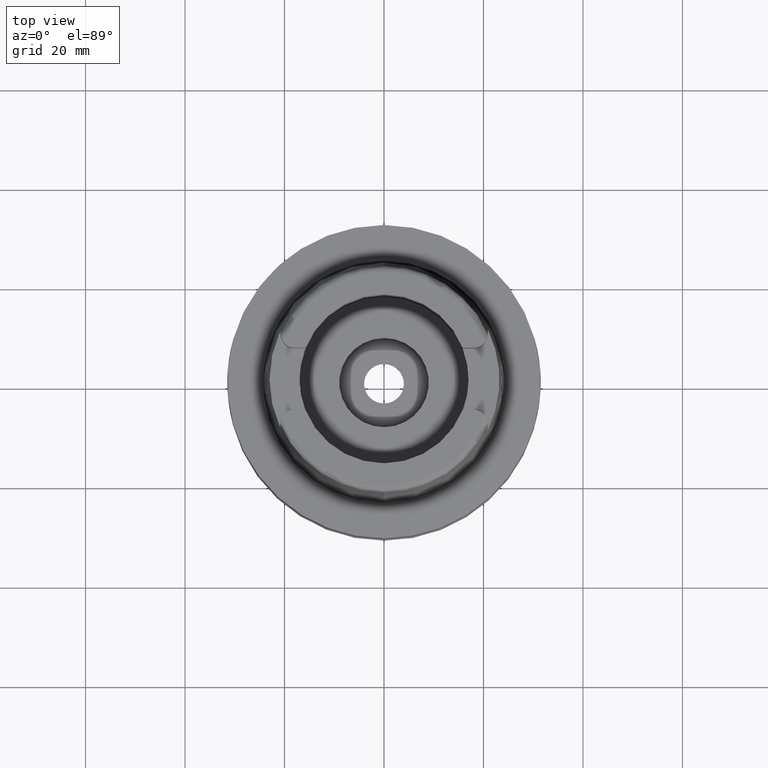
[diagram: clean part render]
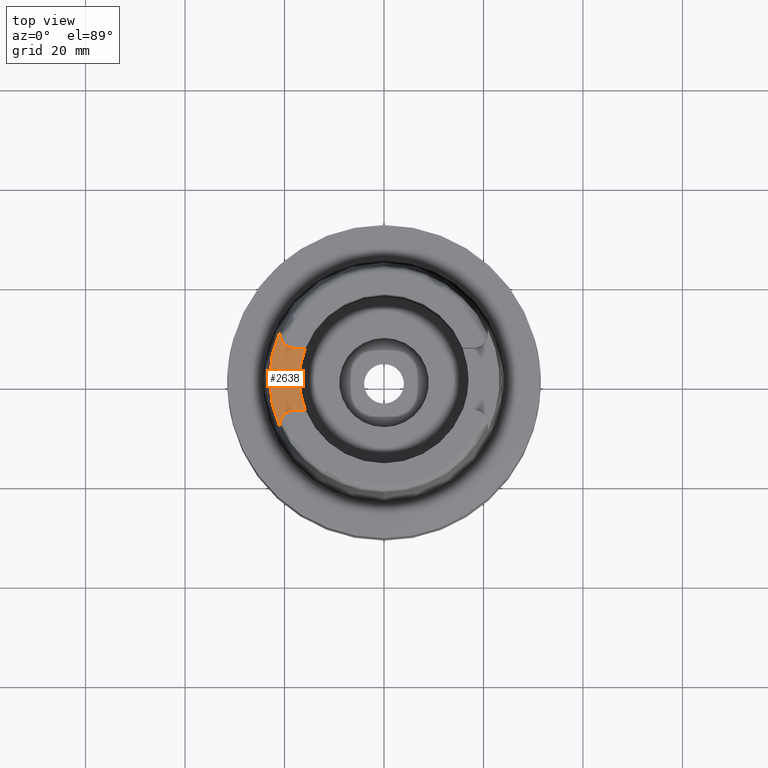
[diagram: same view with one face highlighted and labeled with its STEP entity id]
A machine part, top view. The second image highlights one B-rep face of the part: STEP entity #2638.
In plain terms, the highlighted planar face has unit normal (0, 0, 1).
Its self-contained STEP definition (entity closure, byte-faithful):
#39=CARTESIAN_POINT('',(0.E0,0.E0,2.6E1));
#40=DIRECTION('',(0.E0,0.E0,1.E0));
#41=DIRECTION('',(-9.294994374136E-1,3.688235294118E-1,0.E0));
#42=AXIS2_PLACEMENT_3D('',#39,#40,#41);
#47=DIRECTION('',(-1.E0,8.644330667353E-14,0.E0));
#48=VECTOR('',#47,2.188509563969E0);
#49=CARTESIAN_POINT('',(-1.580149043603E1,-6.27E0,2.6E1));
#50=LINE('',#49,#48);
#54=CARTESIAN_POINT('',(-1.799E1,-9.15E0,2.6E1));
#55=DIRECTION('',(0.E0,0.E0,1.E0));
#56=DIRECTION('',(0.E0,1.E0,0.E0));
#57=AXIS2_PLACEMENT_3D('',#54,#55,#56);
#62=DIRECTION('',(1.239819362355E-6,-9.999999999992E-1,-3.860130687331E-14));
#63=VECTOR('',#62,5.522165905616E-1);
#64=CARTESIAN_POINT('',(-2.087E1,-9.15E0,2.6E1));
#65=LINE('',#64,#63);
#69=CARTESIAN_POINT('',(0.E0,0.E0,2.6E1));
#70=DIRECTION('',(0.E0,0.E0,-1.E0));
#71=DIRECTION('',(-9.068002397791E-1,-4.215605829967E-1,0.E0));
#72=AXIS2_PLACEMENT_3D('',#69,#70,#71);
#77=DIRECTION('',(5.336845320458E-6,-9.999999999858E-1,3.860251871622E-14));
#78=VECTOR('',#77,5.521992549115E-1);
#79=CARTESIAN_POINT('',(-2.087000294700E1,9.702199254904E0,2.6E1));
#80=LINE('',#79,#78);
#84=CARTESIAN_POINT('',(-1.799E1,9.15E0,2.6E1));
#85=DIRECTION('',(0.E0,0.E0,1.E0));
#86=DIRECTION('',(-1.E0,0.E0,0.E0));
#87=AXIS2_PLACEMENT_3D('',#84,#85,#86);
#92=DIRECTION('',(1.E0,8.644330667353E-14,0.E0));
#93=VECTOR('',#92,2.188509563969E0);
#94=CARTESIAN_POINT('',(-1.799E1,6.27E0,2.6E1));
#95=LINE('',#94,#93);
#2261=CARTESIAN_POINT('',(-1.580149043603E1,6.27E0,2.6E1));
#2262=CARTESIAN_POINT('',(-1.580149043603E1,-6.27E0,2.6E1));
#2263=VERTEX_POINT('',#2261);
#2264=VERTEX_POINT('',#2262);
#2277=CARTESIAN_POINT('',(-1.799E1,-6.27E0,2.6E1));
#2278=VERTEX_POINT('',#2277);
#2279=CARTESIAN_POINT('',(-2.087E1,-9.15E0,2.6E1));
#2280=VERTEX_POINT('',#2279);
#2281=CARTESIAN_POINT('',(-2.086999931535E1,-9.702216590561E0,2.6E1));
#2282=VERTEX_POINT('',#2281);
#2283=CARTESIAN_POINT('',(-2.087E1,9.702213322399E0,2.6E1));
#2284=VERTEX_POINT('',#2283);
#2285=CARTESIAN_POINT('',(-2.087E1,9.15E0,2.6E1));
#2286=VERTEX_POINT('',#2285);
#2287=CARTESIAN_POINT('',(-1.799E1,6.27E0,2.6E1));
#2288=VERTEX_POINT('',#2287);
#2616=CARTESIAN_POINT('',(0.E0,0.E0,2.6E1));
#2617=DIRECTION('',(0.E0,0.E0,1.E0));
#2618=DIRECTION('',(0.E0,1.E0,0.E0));
#2619=AXIS2_PLACEMENT_3D('',#2616,#2617,#2618);
#2620=PLANE('',#2619);
#2621=ORIENTED_EDGE('',*,*,#2597,.T.);
#2623=ORIENTED_EDGE('',*,*,#2622,.T.);
#2625=ORIENTED_EDGE('',*,*,#2624,.T.);
#2627=ORIENTED_EDGE('',*,*,#2626,.T.);
#2629=ORIENTED_EDGE('',*,*,#2628,.T.);
#2631=ORIENTED_EDGE('',*,*,#2630,.T.);
#2633=ORIENTED_EDGE('',*,*,#2632,.T.);
#2635=ORIENTED_EDGE('',*,*,#2634,.T.);
#2636=EDGE_LOOP('',(#2621,#2623,#2625,#2627,#2629,#2631,#2633,#2635));
#2637=FACE_OUTER_BOUND('',#2636,.F.);
#43=CIRCLE('',#42,1.7E1);
#58=CIRCLE('',#57,2.88E0);
#73=CIRCLE('',#72,2.301499170874E1);
#88=CIRCLE('',#87,2.88E0);
#2597=EDGE_CURVE('',#2263,#2264,#43,.T.);
#2622=EDGE_CURVE('',#2264,#2278,#50,.T.);
#2624=EDGE_CURVE('',#2278,#2280,#58,.T.);
#2626=EDGE_CURVE('',#2280,#2282,#65,.T.);
#2628=EDGE_CURVE('',#2282,#2284,#73,.T.);
#2630=EDGE_CURVE('',#2284,#2286,#80,.T.);
#2632=EDGE_CURVE('',#2286,#2288,#88,.T.);
#2634=EDGE_CURVE('',#2288,#2263,#95,.T.);
#2638=ADVANCED_FACE('',(#2637),#2620,.T.);